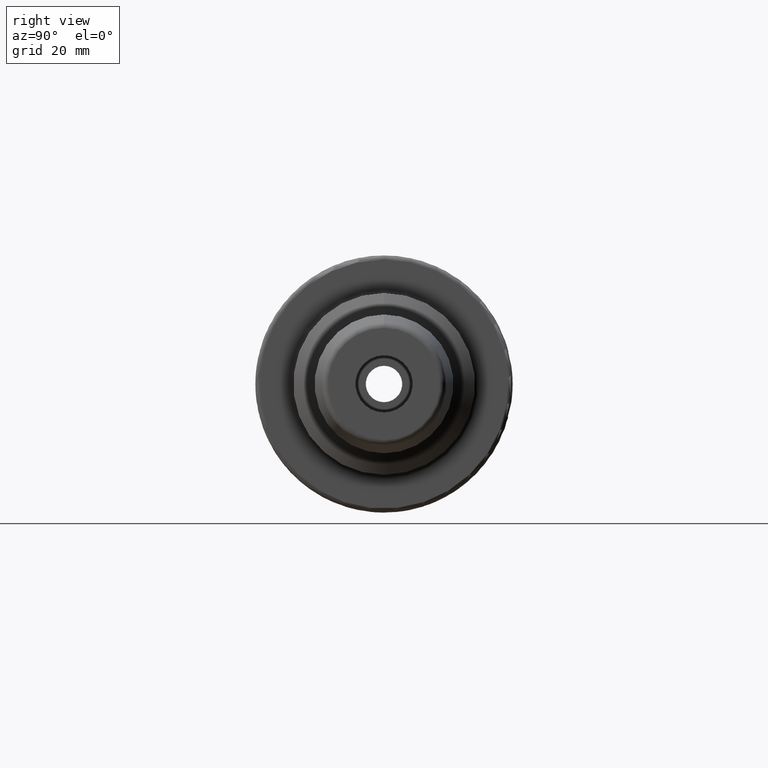
[diagram: clean part render]
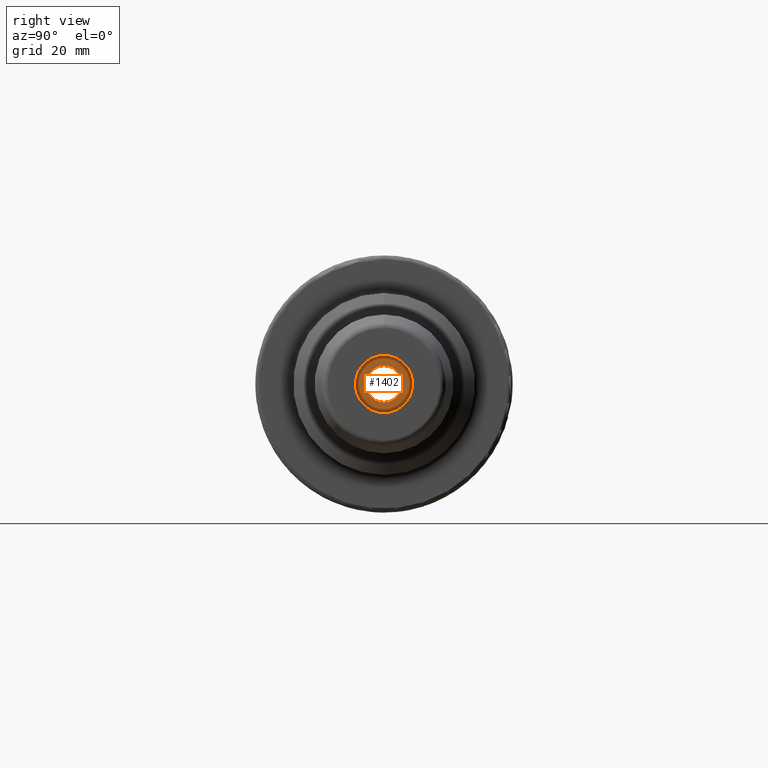
[diagram: same view with one face highlighted and labeled with its STEP entity id]
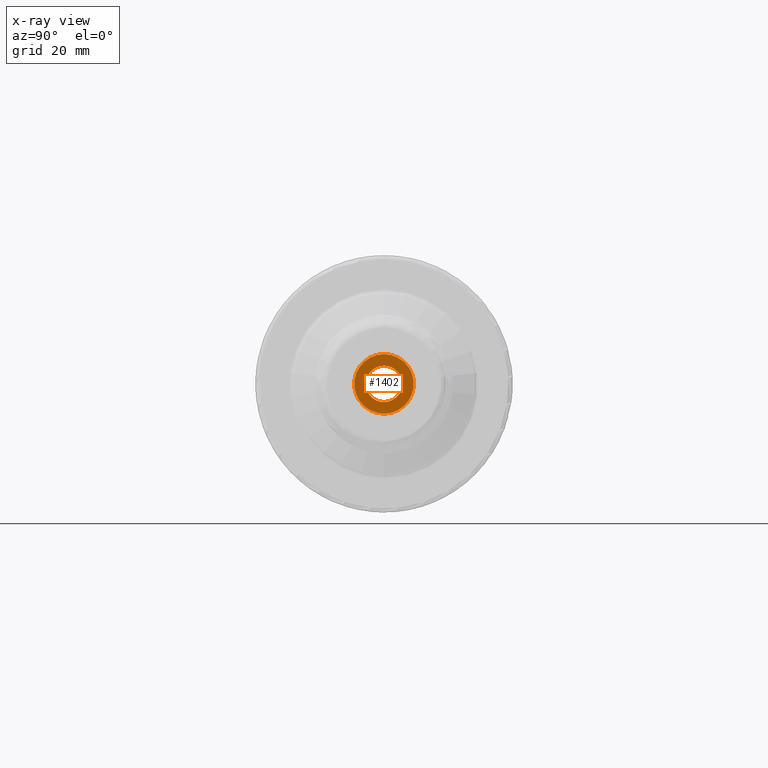
[diagram: x-ray of the same camera — body ghosted, the highlighted face saturated]
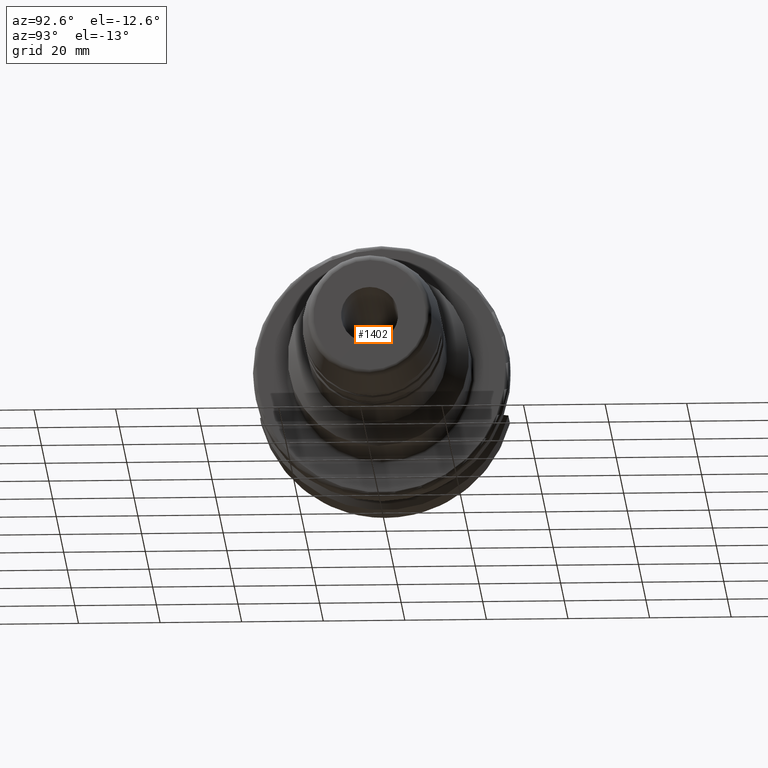
[diagram: same view with one face highlighted and labeled with its STEP entity id]
A machine part, right view. The second image highlights one B-rep face of the part: STEP entity #1402.
The next image is the same camera in x-ray: the body ghosted, the highlighted face saturated — about 13% of this face is hidden behind the body in this view.
A second angle (auxiliary view) of the same face is appended — the face is thin or edge-on in the first view.
In plain terms, the highlighted planar face has unit normal (1, 0, 0).
Its self-contained STEP definition (entity closure, byte-faithful):
#40=PLANE('',#1559);
#96=FACE_BOUND('',#231,.T.);
#138=FACE_OUTER_BOUND('',#230,.T.);
#230=EDGE_LOOP('',(#1037));
#231=EDGE_LOOP('',(#1038));
#467=CIRCLE('',#1484,4.458734);
#512=CIRCLE('',#1558,7.3);
#563=VERTEX_POINT('',#2164);
#603=VERTEX_POINT('',#2374);
#697=EDGE_CURVE('',#563,#563,#467,.T.);
#765=EDGE_CURVE('',#603,#603,#512,.T.);
#1037=ORIENTED_EDGE('',*,*,#765,.T.);
#1038=ORIENTED_EDGE('',*,*,#697,.T.);
#1402=ADVANCED_FACE('',(#138,#96),#40,.T.);
#1484=AXIS2_PLACEMENT_3D('',#2165,#1689,#1690);
#1558=AXIS2_PLACEMENT_3D('',#2376,#1854,#1855);
#1559=AXIS2_PLACEMENT_3D('',#2377,#1856,#1857);
#1689=DIRECTION('center_axis',(-1.,0.,0.));
#1690=DIRECTION('ref_axis',(0.,0.,-1.));
#1854=DIRECTION('center_axis',(1.,0.,0.));
#1855=DIRECTION('ref_axis',(0.,0.,-1.));
#1856=DIRECTION('center_axis',(1.,0.,0.));
#1857=DIRECTION('ref_axis',(0.,0.,-1.));
#2164=CARTESIAN_POINT('',(42.,-5.46037432134947E-16,4.458734));
#2165=CARTESIAN_POINT('Origin',(42.,0.,0.));
#2374=CARTESIAN_POINT('',(42.,-8.93992163377568E-16,7.3));
#2376=CARTESIAN_POINT('Origin',(42.,0.,0.));
#2377=CARTESIAN_POINT('Origin',(42.,0.,2.22044604925031E-15));